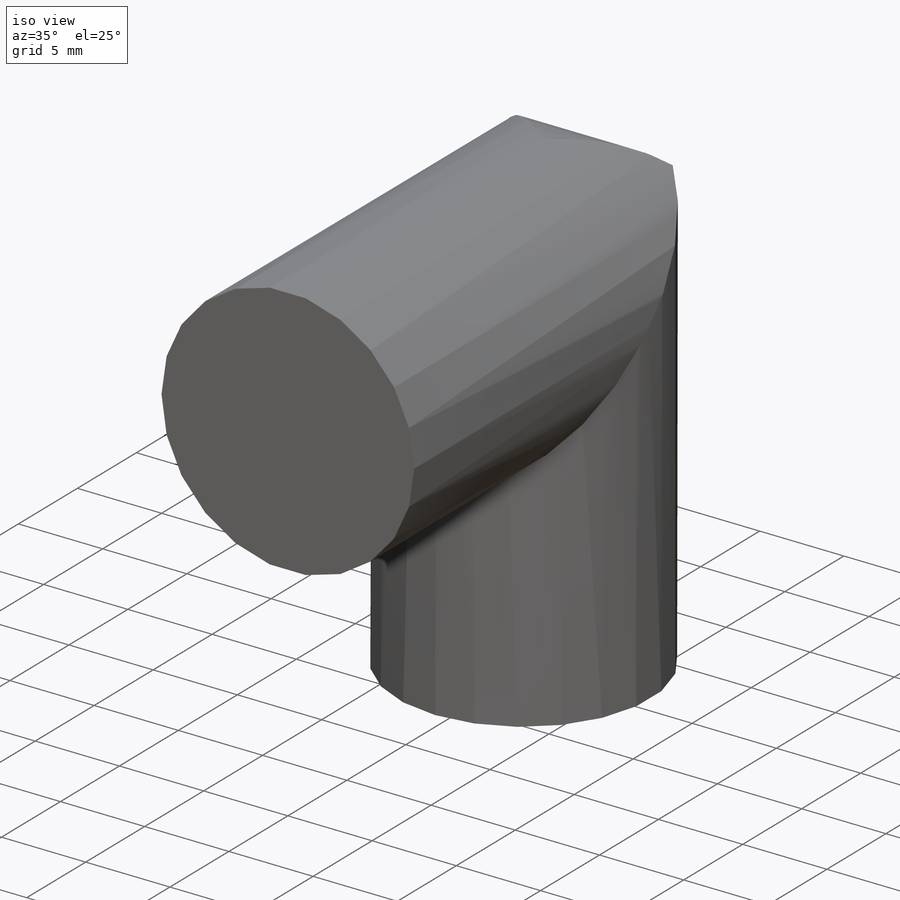
[diagram: iso view]
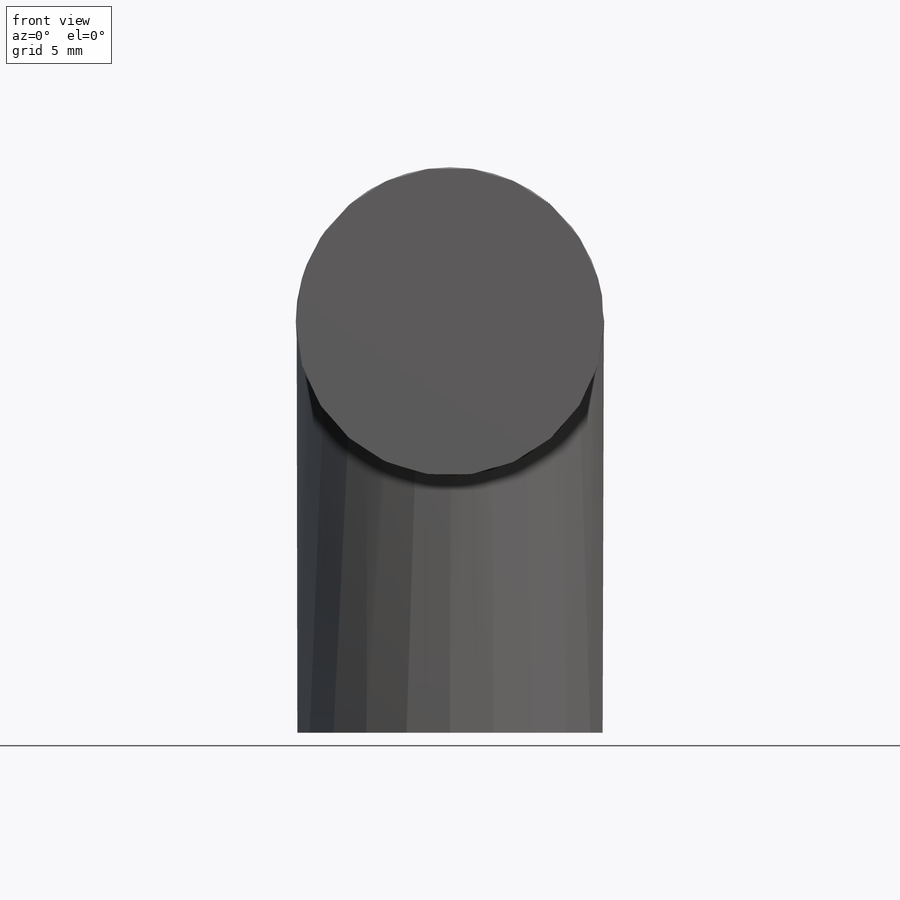
[diagram: front view]
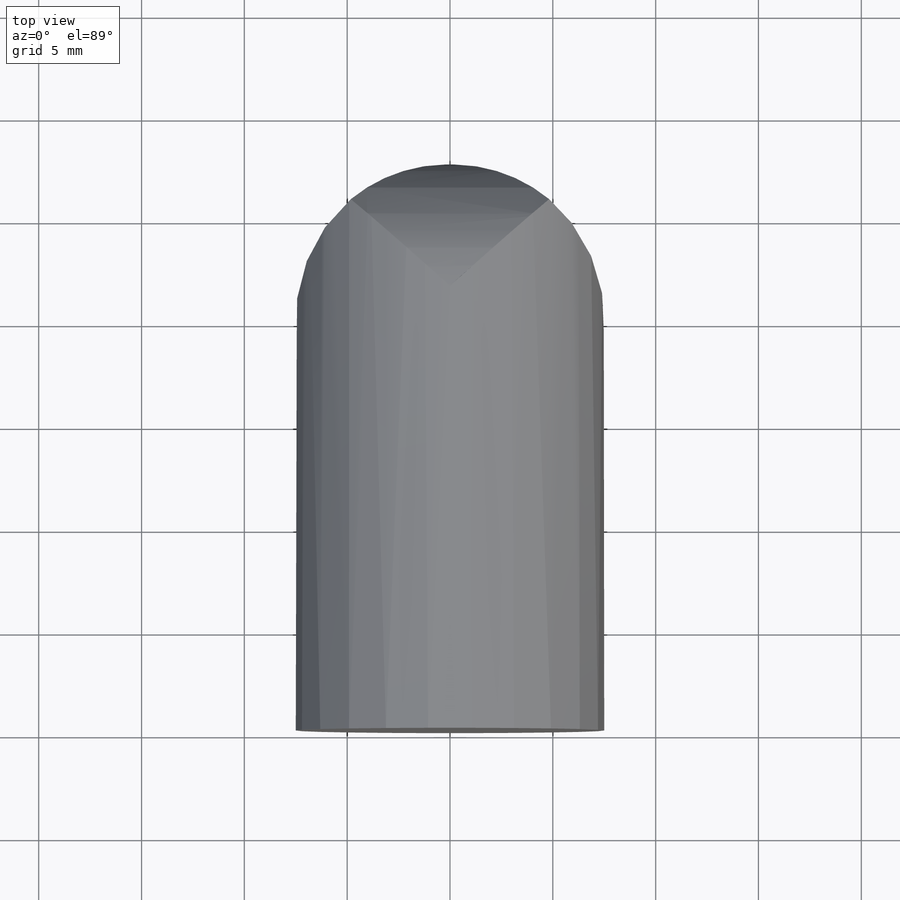
[diagram: top view]
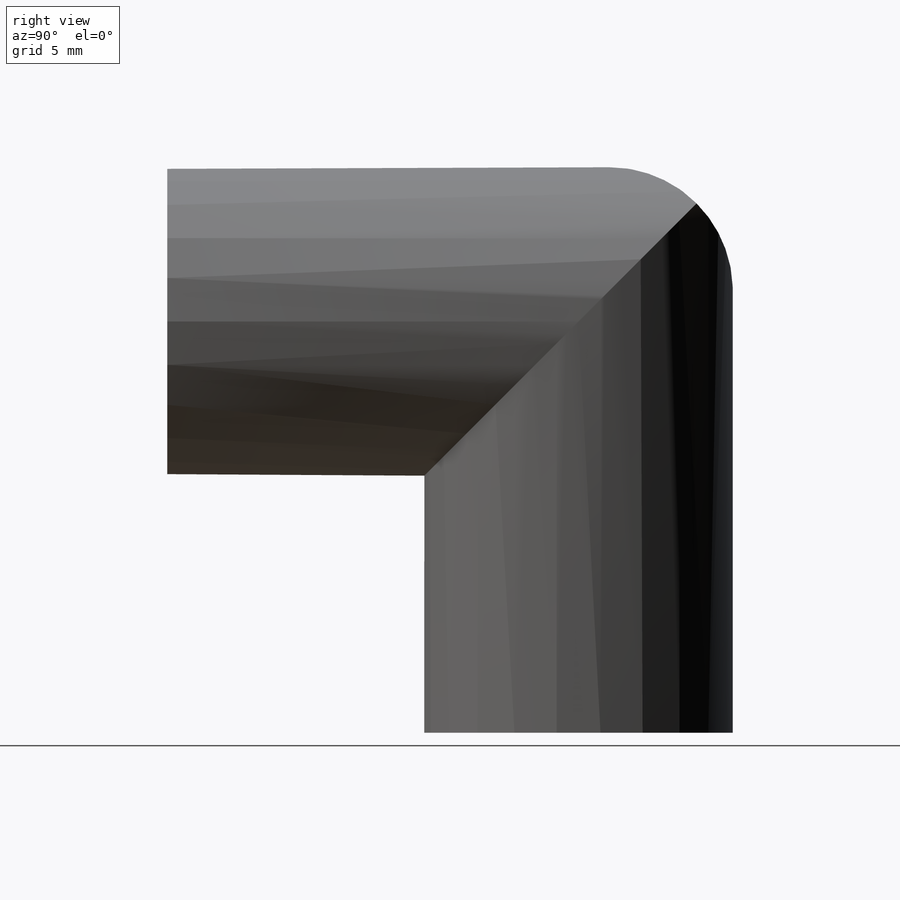
[diagram: right view]
SOLIDWORKS PART (.sldprt)
format: sldprt  version: not decoded by parser v0  size: 291,840 bytes
history: native  units: mm
features: sketch x12, extrude x9, plane x4, material x1, surface_op x1, mirror x1 + 8 further entries (+9 scaffold rows collapsed)
feature tree (45):
  scaffold x9  (default folders/planes/origin — collapsed)
  material  "Material <not specified>"
  plane  "Vorne"
  plane  "Oben"
  plane  "Rechts"
  sketch  "Skizze1"  dims[D1=15.0mm]
  extrude  "Linear austragen1"  Depth=20mm
  plane  "Ebene1"  Offset=20mm
  sketch  "Skizze2"
  extrude  "Linear austragen2"  Depth=20mm
  sketch  "Skizze3"  dims[D1=6.0mm]
  sketch  "Skizze4"  dims[D1=0.0mm]
  sketch  "Skizze5"
  surface_op  "Oberfläche-Linear austragen1"
  sketch  "Skizze6"
  extrude  "Oberfläche-Linear austragen4"  [1 undecoded]
  sketch  "Skizze7"
  extrude  "Trennlinie2"  [1 undecoded]
  sketch  "Skizze8"
  extrude  "Oberfläche-Linear austragen5"  [1 undecoded]
  sketch  "Skizze9"
  extrude  "Trennlinie3"  [1 undecoded]
  "Fläche löschen8"
  "Fläche löschen9"
  "Fläche löschen10"
  "Fläche löschen11"
  sketch  "Skizze10"
  extrude  "Trennlinie4"  [1 undecoded]
  "Fläche löschen12"
  sketch  "Skizze11"
  extrude  "Trennlinie5"  [1 undecoded]
  "Fläche löschen16"
  sketch  "Skizze12"
  extrude  "Trennlinie6"  [1 undecoded]
  "Fläche löschen17"
  "Fläche löschen18"
  mirror  "Spiegeln1"
decode coverage: 5 of 23 modeling features carry decoded parameters; 8 rows unclassified (native names shown)
note: 7 parameter values undecoded
summary: no parameter record found for 7 features
note: suppression state not decoded; provenance and decode notes live in map.json
